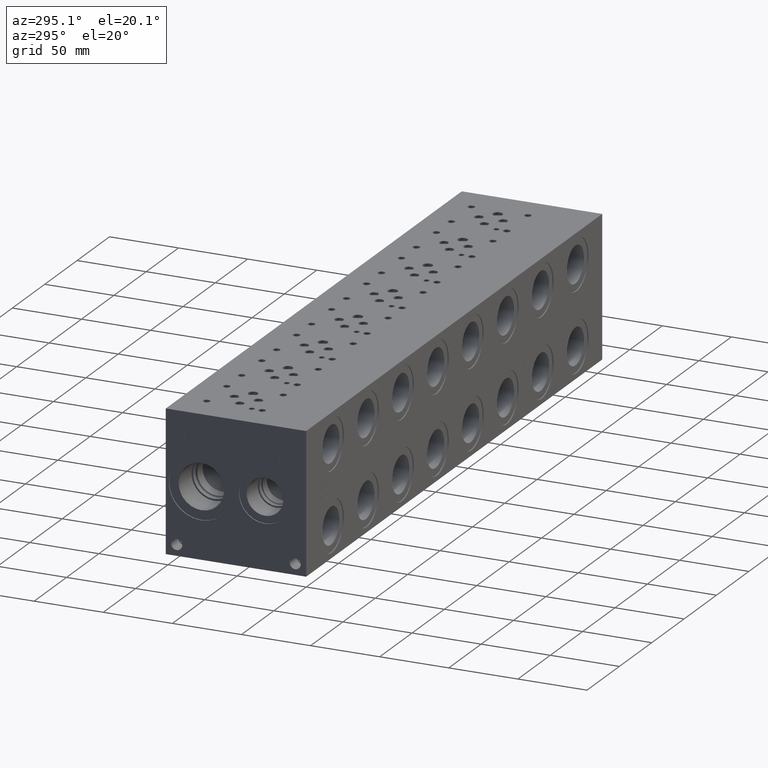
[diagram: clean part render]
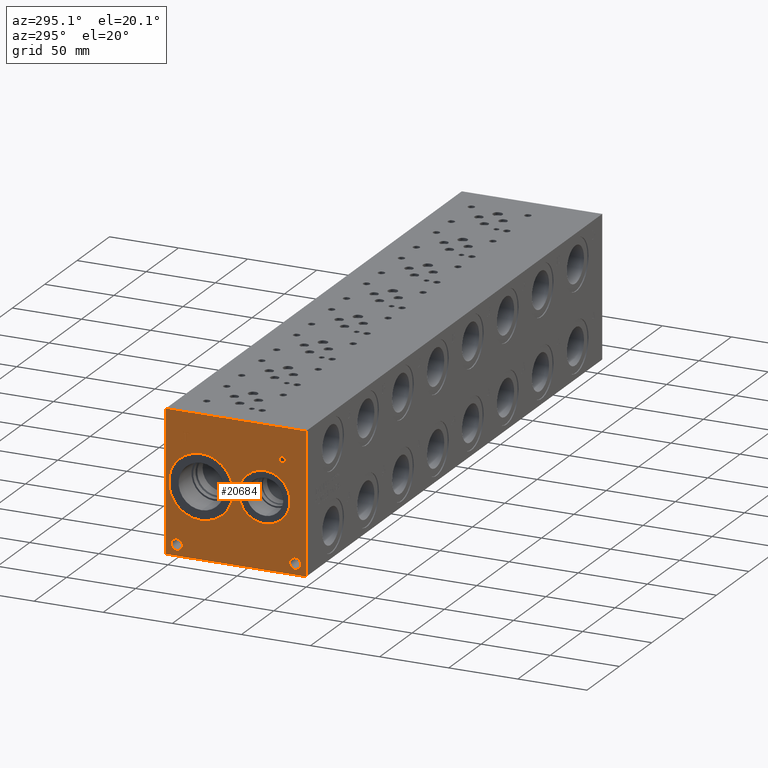
[diagram: same view with one face highlighted and labeled with its STEP entity id]
A machine part, auxiliary view. The second image highlights one B-rep face of the part: STEP entity #20684.
In plain terms, the highlighted planar face has unit normal (-1, 0, 0).
Its self-contained STEP definition (entity closure, byte-faithful):
#601=CIRCLE('',#21612,23.2791);
#602=CIRCLE('',#21613,23.2791);
#603=CIRCLE('',#21614,18.5547);
#604=CIRCLE('',#21615,18.5547);
#605=CIRCLE('',#21616,4.0005);
#606=CIRCLE('',#21617,4.0005);
#607=CIRCLE('',#21618,4.0005);
#608=CIRCLE('',#21619,4.0005);
#1725=B_SPLINE_CURVE_WITH_KNOTS('',2,(#34182,#34183,#34184,#34185),
 .UNSPECIFIED.,.F.,.F.,(3,1,3),(0.,1.,2.),.UNSPECIFIED.);
#1727=B_SPLINE_CURVE_WITH_KNOTS('',2,(#34203,#34204,#34205,#34206),
 .UNSPECIFIED.,.F.,.F.,(3,1,3),(0.,1.,2.),.UNSPECIFIED.);
#1729=B_SPLINE_CURVE_WITH_KNOTS('',2,(#34252,#34253,#34254,#34255),
 .UNSPECIFIED.,.F.,.F.,(3,1,3),(0.,1.,2.),.UNSPECIFIED.);
#1731=B_SPLINE_CURVE_WITH_KNOTS('',2,(#34270,#34271,#34272,#34273),
 .UNSPECIFIED.,.F.,.F.,(3,1,3),(0.,1.,2.),.UNSPECIFIED.);
#1846=FACE_BOUND('',#3851,.T.);
#1847=FACE_BOUND('',#3852,.T.);
#1848=FACE_BOUND('',#3853,.T.);
#1849=FACE_BOUND('',#3854,.T.);
#1850=FACE_BOUND('',#3855,.T.);
#1851=FACE_BOUND('',#3856,.T.);
#2661=FACE_OUTER_BOUND('',#3850,.T.);
#3850=EDGE_LOOP('',(#16513,#16514,#16515,#16516));
#3851=EDGE_LOOP('',(#16517,#16518));
#3852=EDGE_LOOP('',(#16519,#16520));
#3853=EDGE_LOOP('',(#16521,#16522));
#3854=EDGE_LOOP('',(#16523,#16524));
#3855=EDGE_LOOP('',(#16525,#16526,#16527,#16528,#16529,#16530,#16531,#16532));
#3856=EDGE_LOOP('',(#16533,#16534,#16535,#16536,#16537,#16538,#16539,#16540,
#16541));
#4483=LINE('',#27679,#6221);
#5767=LINE('',#34215,#7505);
#5770=LINE('',#34221,#7508);
#5773=LINE('',#34227,#7511);
#5776=LINE('',#34233,#7514);
#5779=LINE('',#34239,#7517);
#5783=LINE('',#34281,#7521);
#5784=LINE('',#34283,#7522);
#5785=LINE('',#34284,#7523);
#5786=LINE('',#34303,#7524);
#5787=LINE('',#34305,#7525);
#5788=LINE('',#34307,#7526);
#5789=LINE('',#34309,#7527);
#5790=LINE('',#34311,#7528);
#5791=LINE('',#34313,#7529);
#5792=LINE('',#34315,#7530);
#5793=LINE('',#34316,#7531);
#6221=VECTOR('',#22777,10.);
#7505=VECTOR('',#24971,10.);
#7508=VECTOR('',#24976,10.);
#7511=VECTOR('',#24981,10.);
#7514=VECTOR('',#24986,10.);
#7517=VECTOR('',#24991,10.);
#7521=VECTOR('',#24999,10.);
#7522=VECTOR('',#25000,10.);
#7523=VECTOR('',#25001,10.);
#7524=VECTOR('',#25018,10.);
#7525=VECTOR('',#25019,10.);
#7526=VECTOR('',#25020,10.);
#7527=VECTOR('',#25021,10.);
#7528=VECTOR('',#25022,10.);
#7529=VECTOR('',#25023,10.);
#7530=VECTOR('',#25024,10.);
#7531=VECTOR('',#25025,10.);
#7945=VERTEX_POINT('',#27672);
#7948=VERTEX_POINT('',#27677);
#9147=VERTEX_POINT('',#34180);
#9148=VERTEX_POINT('',#34181);
#9151=VERTEX_POINT('',#34202);
#9153=VERTEX_POINT('',#34214);
#9155=VERTEX_POINT('',#34220);
#9157=VERTEX_POINT('',#34226);
#9159=VERTEX_POINT('',#34232);
#9161=VERTEX_POINT('',#34238);
#9163=VERTEX_POINT('',#34251);
#9165=VERTEX_POINT('',#34280);
#9166=VERTEX_POINT('',#34282);
#9167=VERTEX_POINT('',#34285);
#9168=VERTEX_POINT('',#34286);
#9169=VERTEX_POINT('',#34289);
#9170=VERTEX_POINT('',#34290);
#9171=VERTEX_POINT('',#34293);
#9172=VERTEX_POINT('',#34294);
#9173=VERTEX_POINT('',#34297);
#9174=VERTEX_POINT('',#34298);
#9175=VERTEX_POINT('',#34301);
#9176=VERTEX_POINT('',#34302);
#9177=VERTEX_POINT('',#34304);
#9178=VERTEX_POINT('',#34306);
#9179=VERTEX_POINT('',#34308);
#9180=VERTEX_POINT('',#34310);
#9181=VERTEX_POINT('',#34312);
#9182=VERTEX_POINT('',#34314);
#10043=EDGE_CURVE('',#7945,#7948,#4483,.T.);
#11812=EDGE_CURVE('',#9147,#9148,#1725,.T.);
#11816=EDGE_CURVE('',#9151,#9147,#1727,.T.);
#11819=EDGE_CURVE('',#9153,#9151,#5767,.T.);
#11822=EDGE_CURVE('',#9155,#9153,#5770,.T.);
#11825=EDGE_CURVE('',#9157,#9155,#5773,.T.);
#11828=EDGE_CURVE('',#9159,#9157,#5776,.T.);
#11831=EDGE_CURVE('',#9161,#9159,#5779,.T.);
#11834=EDGE_CURVE('',#9163,#9161,#1729,.T.);
#11837=EDGE_CURVE('',#9148,#9163,#1731,.T.);
#11839=EDGE_CURVE('',#9165,#7945,#5783,.T.);
#11840=EDGE_CURVE('',#9166,#7948,#5784,.T.);
#11841=EDGE_CURVE('',#9165,#9166,#5785,.T.);
#11842=EDGE_CURVE('',#9167,#9168,#601,.T.);
#11843=EDGE_CURVE('',#9168,#9167,#602,.T.);
#11844=EDGE_CURVE('',#9169,#9170,#603,.T.);
#11845=EDGE_CURVE('',#9170,#9169,#604,.T.);
#11846=EDGE_CURVE('',#9171,#9172,#605,.T.);
#11847=EDGE_CURVE('',#9172,#9171,#606,.T.);
#11848=EDGE_CURVE('',#9173,#9174,#607,.T.);
#11849=EDGE_CURVE('',#9174,#9173,#608,.T.);
#11850=EDGE_CURVE('',#9175,#9176,#5786,.T.);
#11851=EDGE_CURVE('',#9176,#9177,#5787,.T.);
#11852=EDGE_CURVE('',#9177,#9178,#5788,.T.);
#11853=EDGE_CURVE('',#9178,#9179,#5789,.T.);
#11854=EDGE_CURVE('',#9179,#9180,#5790,.T.);
#11855=EDGE_CURVE('',#9180,#9181,#5791,.T.);
#11856=EDGE_CURVE('',#9181,#9182,#5792,.T.);
#11857=EDGE_CURVE('',#9182,#9175,#5793,.T.);
#16513=ORIENTED_EDGE('',*,*,#11839,.T.);
#16514=ORIENTED_EDGE('',*,*,#10043,.T.);
#16515=ORIENTED_EDGE('',*,*,#11840,.F.);
#16516=ORIENTED_EDGE('',*,*,#11841,.F.);
#16517=ORIENTED_EDGE('',*,*,#11842,.T.);
#16518=ORIENTED_EDGE('',*,*,#11843,.T.);
#16519=ORIENTED_EDGE('',*,*,#11844,.T.);
#16520=ORIENTED_EDGE('',*,*,#11845,.T.);
#16521=ORIENTED_EDGE('',*,*,#11846,.T.);
#16522=ORIENTED_EDGE('',*,*,#11847,.T.);
#16523=ORIENTED_EDGE('',*,*,#11848,.T.);
#16524=ORIENTED_EDGE('',*,*,#11849,.T.);
#16525=ORIENTED_EDGE('',*,*,#11850,.T.);
#16526=ORIENTED_EDGE('',*,*,#11851,.T.);
#16527=ORIENTED_EDGE('',*,*,#11852,.T.);
#16528=ORIENTED_EDGE('',*,*,#11853,.T.);
#16529=ORIENTED_EDGE('',*,*,#11854,.T.);
#16530=ORIENTED_EDGE('',*,*,#11855,.T.);
#16531=ORIENTED_EDGE('',*,*,#11856,.T.);
#16532=ORIENTED_EDGE('',*,*,#11857,.T.);
#16533=ORIENTED_EDGE('',*,*,#11812,.T.);
#16534=ORIENTED_EDGE('',*,*,#11837,.T.);
#16535=ORIENTED_EDGE('',*,*,#11834,.T.);
#16536=ORIENTED_EDGE('',*,*,#11831,.T.);
#16537=ORIENTED_EDGE('',*,*,#11828,.T.);
#16538=ORIENTED_EDGE('',*,*,#11825,.T.);
#16539=ORIENTED_EDGE('',*,*,#11822,.T.);
#16540=ORIENTED_EDGE('',*,*,#11819,.T.);
#16541=ORIENTED_EDGE('',*,*,#11816,.T.);
#19236=PLANE('',#21611);
#20684=ADVANCED_FACE('',(#2661,#1846,#1847,#1848,#1849,#1850,#1851),#19236,
 .T.);
#21611=AXIS2_PLACEMENT_3D('',#34279,#24997,#24998);
#21612=AXIS2_PLACEMENT_3D('',#34287,#25002,#25003);
#21613=AXIS2_PLACEMENT_3D('',#34288,#25004,#25005);
#21614=AXIS2_PLACEMENT_3D('',#34291,#25006,#25007);
#21615=AXIS2_PLACEMENT_3D('',#34292,#25008,#25009);
#21616=AXIS2_PLACEMENT_3D('',#34295,#25010,#25011);
#21617=AXIS2_PLACEMENT_3D('',#34296,#25012,#25013);
#21618=AXIS2_PLACEMENT_3D('',#34299,#25014,#25015);
#21619=AXIS2_PLACEMENT_3D('',#34300,#25016,#25017);
#22777=DIRECTION('',(0.,0.,1.));
#24971=DIRECTION('',(0.,-1.,0.));
#24976=DIRECTION('',(0.,-2.79741238752512E-15,1.));
#24981=DIRECTION('',(0.,1.,0.));
#24986=DIRECTION('',(0.,1.876090699025E-15,-1.));
#24991=DIRECTION('',(0.,1.,0.));
#24997=DIRECTION('center_axis',(-1.,0.,0.));
#24998=DIRECTION('ref_axis',(0.,-1.,0.));
#24999=DIRECTION('',(0.,-1.,0.));
#25000=DIRECTION('',(0.,-1.,0.));
#25001=DIRECTION('',(0.,0.,1.));
#25002=DIRECTION('center_axis',(1.,0.,0.));
#25003=DIRECTION('ref_axis',(0.,0.,1.));
#25004=DIRECTION('center_axis',(1.,0.,0.));
#25005=DIRECTION('ref_axis',(0.,0.,1.));
#25006=DIRECTION('center_axis',(1.,0.,0.));
#25007=DIRECTION('ref_axis',(0.,0.,1.));
#25008=DIRECTION('center_axis',(1.,0.,0.));
#25009=DIRECTION('ref_axis',(0.,0.,1.));
#25010=DIRECTION('center_axis',(1.,0.,0.));
#25011=DIRECTION('ref_axis',(0.,1.,0.));
#25012=DIRECTION('center_axis',(1.,0.,0.));
#25013=DIRECTION('ref_axis',(0.,1.,0.));
#25014=DIRECTION('center_axis',(1.,0.,0.));
#25015=DIRECTION('ref_axis',(0.,1.,0.));
#25016=DIRECTION('center_axis',(1.,0.,0.));
#25017=DIRECTION('ref_axis',(0.,1.,0.));
#25018=DIRECTION('',(0.,1.,0.));
#25019=DIRECTION('',(0.,-3.17280044688051E-15,1.));
#25020=DIRECTION('',(0.,1.,0.));
#25021=DIRECTION('',(0.,0.,1.));
#25022=DIRECTION('',(0.,-1.,-3.47984565141734E-15));
#25023=DIRECTION('',(0.,0.,-1.));
#25024=DIRECTION('',(0.,1.,8.33818088455555E-15));
#25025=DIRECTION('',(0.,3.17280044688051E-15,-1.));
#27672=CARTESIAN_POINT('',(0.,0.,0.));
#27677=CARTESIAN_POINT('',(0.,0.,101.6));
#27679=CARTESIAN_POINT('',(0.,0.,0.));
#34180=CARTESIAN_POINT('',(0.,15.9431827976406,80.5662681439707));
#34181=CARTESIAN_POINT('',(0.,15.186740345468,79.0482373726039));
#34182=CARTESIAN_POINT('Ctrl Pts',(0.,15.9431827976406,80.5662681439707));
#34183=CARTESIAN_POINT('Ctrl Pts',(0.,15.5881179731514,80.3244123939564));
#34184=CARTESIAN_POINT('Ctrl Pts',(0.,15.186740345468,79.5782616758269));
#34185=CARTESIAN_POINT('Ctrl Pts',(0.,15.186740345468,79.0482373726039));
#34202=CARTESIAN_POINT('',(0.,17.6052978456117,80.9624999046326));
#34203=CARTESIAN_POINT('Ctrl Pts',(0.,17.6052978456117,80.9624999046326));
#34204=CARTESIAN_POINT('Ctrl Pts',(0.,17.0392524732376,80.9624999046326));
#34205=CARTESIAN_POINT('Ctrl Pts',(0.,16.2467889519139,80.7772486918556));
#34206=CARTESIAN_POINT('Ctrl Pts',(0.,15.9431827976406,80.5662681439707));
#34214=CARTESIAN_POINT('',(0.,19.2005166223022,80.9624999046326));
#34215=CARTESIAN_POINT('',(0.,60.4002583111511,80.9624999046326));
#34220=CARTESIAN_POINT('',(0.,19.2005166223022,74.6125));
#34221=CARTESIAN_POINT('',(0.,19.2005166223023,37.3062499999999));
#34226=CARTESIAN_POINT('',(0.,18.3565944307627,74.6125));
#34227=CARTESIAN_POINT('',(0.,59.9782972153814,74.6125));
#34232=CARTESIAN_POINT('',(0.,18.3565944307627,76.9795988299279));
#34233=CARTESIAN_POINT('',(0.,18.3565944307628,38.4897994149638));
#34238=CARTESIAN_POINT('',(0.,17.6413189147628,76.9795988299279));
#34239=CARTESIAN_POINT('',(0.,59.6206594573814,76.9795988299279));
#34251=CARTESIAN_POINT('',(0.,15.7424939837989,77.6382698086904));
#34252=CARTESIAN_POINT('Ctrl Pts',(0.,15.7424939837989,77.6382698086904));
#34253=CARTESIAN_POINT('Ctrl Pts',(0.,16.0718294731802,77.3140801863307));
#34254=CARTESIAN_POINT('Ctrl Pts',(0.,16.9620644679139,76.9795988299279));
#34255=CARTESIAN_POINT('Ctrl Pts',(0.,17.6413189147628,76.9795988299279));
#34270=CARTESIAN_POINT('Ctrl Pts',(0.,15.186740345468,79.0482373726039));
#34271=CARTESIAN_POINT('Ctrl Pts',(0.,15.186740345468,78.6365680108774));
#34272=CARTESIAN_POINT('Ctrl Pts',(0.,15.4800547656982,77.8955631597695));
#34273=CARTESIAN_POINT('Ctrl Pts',(0.,15.7424939837989,77.6382698086904));
#34279=CARTESIAN_POINT('Origin',(0.,101.6,0.));
#34280=CARTESIAN_POINT('',(0.,101.6,0.));
#34281=CARTESIAN_POINT('',(0.,101.6,0.));
#34282=CARTESIAN_POINT('',(0.,101.6,101.6));
#34283=CARTESIAN_POINT('',(0.,101.6,101.6));
#34284=CARTESIAN_POINT('',(0.,101.6,0.));
#34285=CARTESIAN_POINT('',(0.,76.2,74.0791));
#34286=CARTESIAN_POINT('',(0.,76.2,27.5209));
#34287=CARTESIAN_POINT('Origin',(0.,76.2,50.8));
#34288=CARTESIAN_POINT('Origin',(0.,76.2,50.8));
#34289=CARTESIAN_POINT('',(0.,30.1752,69.3547));
#34290=CARTESIAN_POINT('',(0.,30.1752,32.2453));
#34291=CARTESIAN_POINT('Origin',(0.,30.1752,50.8));
#34292=CARTESIAN_POINT('Origin',(0.,30.1752,50.8));
#34293=CARTESIAN_POINT('',(0.,97.6757,7.92480000000001));
#34294=CARTESIAN_POINT('',(0.,89.6747,7.92480000000001));
#34295=CARTESIAN_POINT('Origin',(0.,93.6752,7.92480000000001));
#34296=CARTESIAN_POINT('Origin',(0.,93.6752,7.92480000000001));
#34297=CARTESIAN_POINT('',(0.,11.9253,7.92480000000001));
#34298=CARTESIAN_POINT('',(0.,3.9243,7.92480000000001));
#34299=CARTESIAN_POINT('Origin',(0.,7.9248,7.92480000000001));
#34300=CARTESIAN_POINT('Origin',(0.,7.9248,7.92480000000001));
#34301=CARTESIAN_POINT('',(0.,86.724584728547,80.9625));
#34302=CARTESIAN_POINT('',(0.,87.5685069200865,80.9625));
#34303=CARTESIAN_POINT('',(0.,94.1622923642735,80.9625));
#34304=CARTESIAN_POINT('',(0.,87.5685069200864,86.5612033194816));
#34305=CARTESIAN_POINT('',(0.,87.5685069200866,40.48125));
#34306=CARTESIAN_POINT('',(0.,89.6988958670215,86.5612033194816));
#34307=CARTESIAN_POINT('',(0.,94.5842534600432,86.5612033194816));
#34308=CARTESIAN_POINT('',(0.,89.6988958670215,87.3124999046326));
#34309=CARTESIAN_POINT('',(0.,89.6988958670215,43.2806016597408));
#34310=CARTESIAN_POINT('',(0.,84.5941957816119,87.3124999046326));
#34311=CARTESIAN_POINT('',(0.,95.6494479335106,87.3124999046326));
#34312=CARTESIAN_POINT('',(0.,84.5941957816119,86.5612033194815));
#34313=CARTESIAN_POINT('',(0.,84.5941957816119,43.6562499523163));
#34314=CARTESIAN_POINT('',(0.,86.7245847285469,86.5612033194816));
#34315=CARTESIAN_POINT('',(0.,93.0970978908056,86.5612033194816));
#34316=CARTESIAN_POINT('',(0.,86.7245847285471,43.2806016597408));